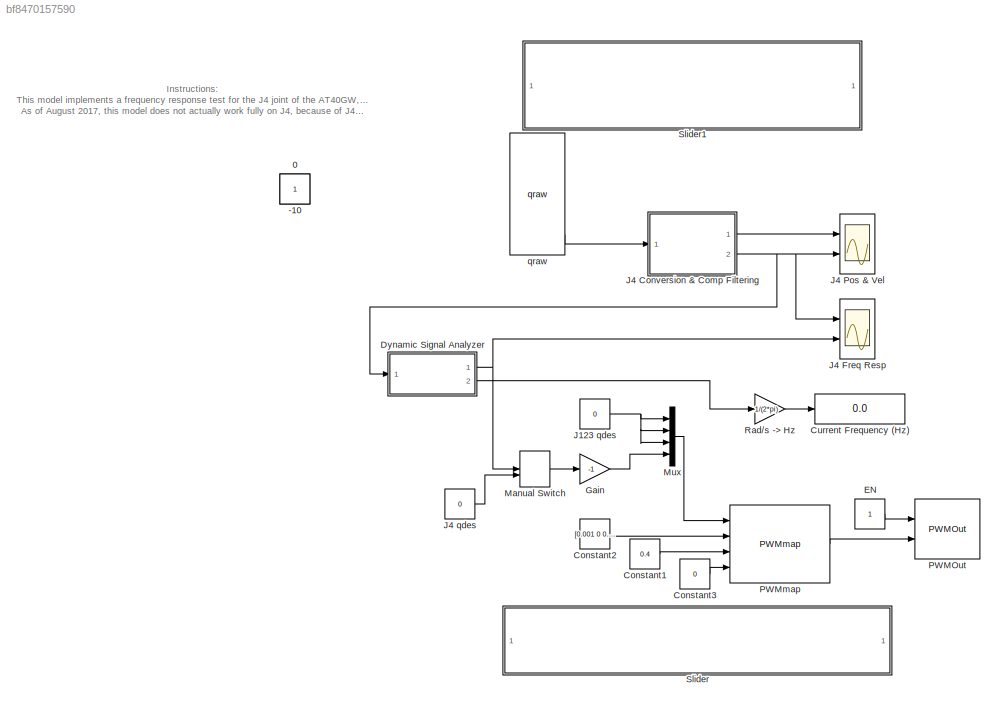
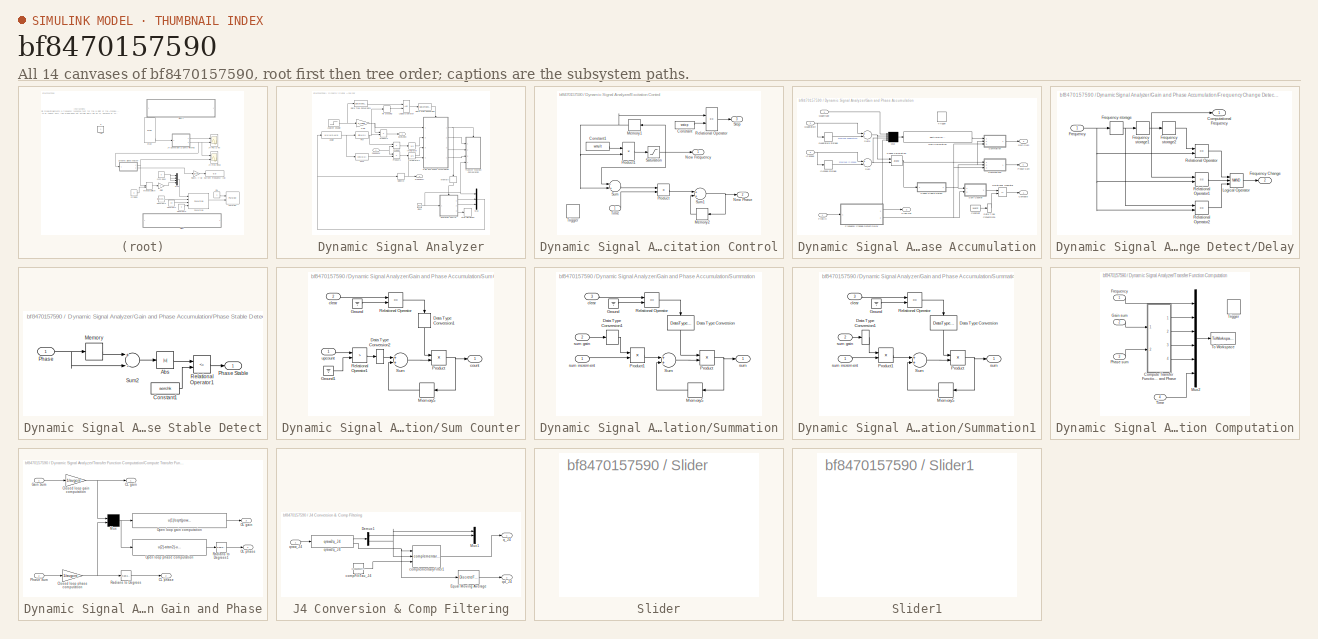
[diagram: thumbnail index - all 14 canvases of the model, root first then tree order]
MODEL slx_bf8470157590
KIND model
CONFIG AbsTol = auto
CONFIG EnableMultiTasking = on
CONFIG FixedStep = 0.001
CONFIG MaxStep = auto
CONFIG MinStep = auto
CONFIG RelTol = 1e-3
CONFIG SampleTimeConstraint = Unconstrained
CONFIG Solver = ode5
CONFIG SolverName = ode5
CONFIG StartTime = 0.0
CONFIG StopTime = inf
BLOCK [Constant] -10
  IOType = siggen
BLOCK [Constant] 0
  IOType = siggen
BLOCK [Constant] Constant1
  Value = 0.4
BLOCK [Constant] Constant2
  Value = [0.001 0 0.001 0.001]
BLOCK [Constant] Constant3
  Value = 0
BLOCK [Display] Current Frequency (Hz)
  Decimation = 1
  Ports = [1]
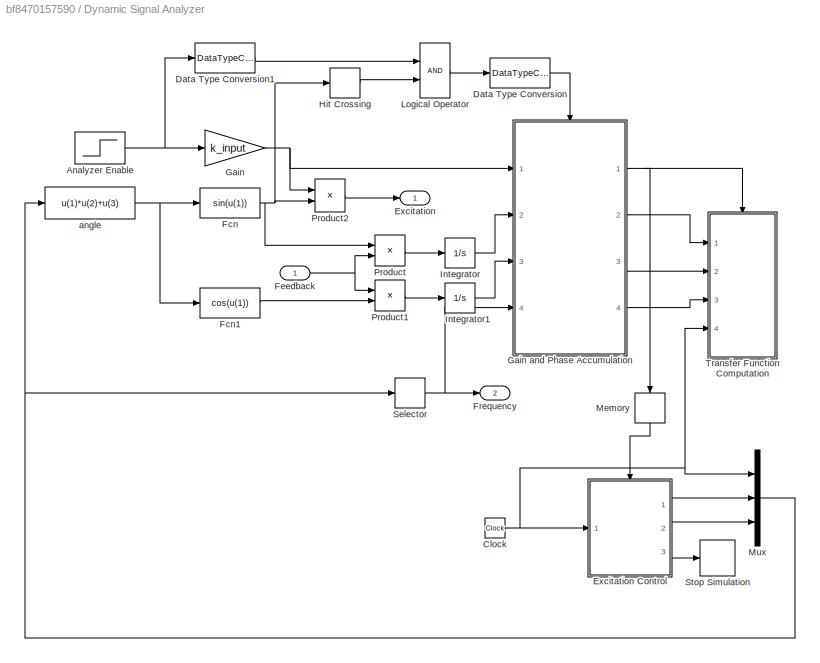
BLOCK [SubSystem] Dynamic Signal Analyzer
  Ports = [1, 2]
  RequestExecContextInheritance = off
  Variant = off
BLOCK [Step] Dynamic Signal Analyzer/Analyzer Enable
  After = analyzer_enable
  Time = tsettle
BLOCK [Clock] Dynamic Signal Analyzer/Clock
BLOCK [DataTypeConversion] Dynamic Signal Analyzer/Data Type Conversion
BLOCK [DataTypeConversion] Dynamic Signal Analyzer/Data Type Conversion1
BLOCK [Outport] Dynamic Signal Analyzer/Excitation
  IconDisplay = Port number
  InitialOutput = 0
BLOCK [SubSystem] Dynamic Signal Analyzer/Excitation Control
  Ports = [1, 3, 0, 1]
  RequestExecContextInheritance = off
  TreatAsAtomicUnit = on
  Variant = off
BLOCK [Constant] Dynamic Signal Analyzer/Excitation Control/Constant
  Value = wstop
BLOCK [Constant] Dynamic Signal Analyzer/Excitation Control/Constant1
  Value = wmult
BLOCK [Memory] Dynamic Signal Analyzer/Excitation Control/Memory1
  InheritSampleTime = on
  X0 = winit
BLOCK [Memory] Dynamic Signal Analyzer/Excitation Control/Memory2
  InheritSampleTime = on
BLOCK [Outport] Dynamic Signal Analyzer/Excitation Control/New Frequency
  IconDisplay = Port number
  InitialOutput = winit
BLOCK [Outport] Dynamic Signal Analyzer/Excitation Control/New Phase
  IconDisplay = Port number
  InitialOutput = 0
  Port = 2
BLOCK [Product] Dynamic Signal Analyzer/Excitation Control/Product
  Ports = [2, 1]
  RndMeth = Floor
BLOCK [Product] Dynamic Signal Analyzer/Excitation Control/Product1
  Ports = [2, 1]
  RndMeth = Floor
BLOCK [RelationalOperator] Dynamic Signal Analyzer/Excitation Control/Relational Operator
  Operator = <=
  Ports = [2, 1]
BLOCK [Saturate] Dynamic Signal Analyzer/Excitation Control/Saturation
  InputPortMap = u0
  LowerLimit = wstop
  Ports = [1, 1]
  UpperLimit = winit
BLOCK [Outport] Dynamic Signal Analyzer/Excitation Control/Stop
  IconDisplay = Port number
  InitialOutput = 0
  Port = 3
BLOCK [Sum] Dynamic Signal Analyzer/Excitation Control/Sum
  Inputs = -+
  Ports = [2, 1]
BLOCK [Sum] Dynamic Signal Analyzer/Excitation Control/Sum1
  Ports = [2, 1]
BLOCK [Inport] Dynamic Signal Analyzer/Excitation Control/Time
  IconDisplay = Port number
BLOCK [TriggerPort] Dynamic Signal Analyzer/Excitation Control/Trigger
  Ports = []
  VariantControl = Variant
BLOCK [Fcn] Dynamic Signal Analyzer/Fcn
  Expr = sin(u(1))
BLOCK [Fcn] Dynamic Signal Analyzer/Fcn1
  Expr = cos(u(1))
BLOCK [Inport] Dynamic Signal Analyzer/Feedback
  IconDisplay = Port number
BLOCK [Outport] Dynamic Signal Analyzer/Frequency
  IconDisplay = Port number
  InitialOutput = 0
  Port = 2
BLOCK [Gain] Dynamic Signal Analyzer/Gain
  Gain = k_input
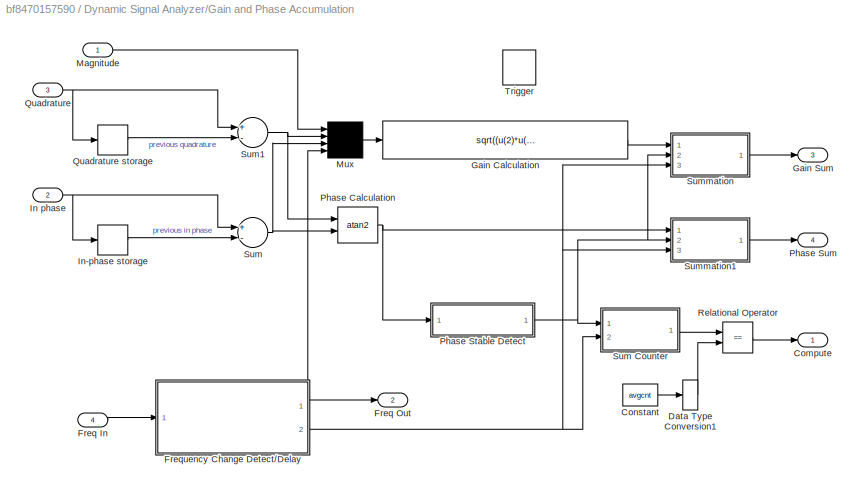
BLOCK [SubSystem] Dynamic Signal Analyzer/Gain and Phase Accumulation
  Ports = [4, 4, 0, 1]
  RequestExecContextInheritance = off
  TreatAsAtomicUnit = on
  Variant = off
BLOCK [Outport] Dynamic Signal Analyzer/Gain and Phase Accumulation/Compute
  IconDisplay = Port number
  InitialOutput = 0
BLOCK [Constant] Dynamic Signal Analyzer/Gain and Phase Accumulation/Constant
  Value = avgcnt
BLOCK [DataTypeConversion] Dynamic Signal Analyzer/Gain and Phase Accumulation/Data Type Conversion1
BLOCK [Inport] Dynamic Signal Analyzer/Gain and Phase Accumulation/Freq In
  IconDisplay = Port number
  Port = 4
BLOCK [Outport] Dynamic Signal Analyzer/Gain and Phase Accumulation/Freq Out
  IconDisplay = Port number
  InitialOutput = winit
  Port = 2
BLOCK [SubSystem] Dynamic Signal Analyzer/Gain and Phase Accumulation/Frequency Change Detect//Delay
  Ports = [1, 2]
  RequestExecContextInheritance = off
  Variant = off
BLOCK [Outport] Dynamic Signal Analyzer/Gain and Phase Accumulation/Frequency Change Detect//Delay/Computational Frequency
  IconDisplay = Port number
  InitialOutput = 0
BLOCK [Inport] Dynamic Signal Analyzer/Gain and Phase Accumulation/Frequency Change Detect//Delay/Frequency
  IconDisplay = Port number
BLOCK [Outport] Dynamic Signal Analyzer/Gain and Phase Accumulation/Frequency Change Detect//Delay/Frequency Change
  IconDisplay = Port number
  InitialOutput = 0
  Port = 2
BLOCK [Memory] Dynamic Signal Analyzer/Gain and Phase Accumulation/Frequency Change Detect//Delay/Frequency storage
  InheritSampleTime = on
  X0 = 1e-6
BLOCK [Memory] Dynamic Signal Analyzer/Gain and Phase Accumulation/Frequency Change Detect//Delay/Frequency storage1
  InheritSampleTime = on
  X0 = 1e-6
BLOCK [Memory] Dynamic Signal Analyzer/Gain and Phase Accumulation/Frequency Change Detect//Delay/Frequency storage2
  InheritSampleTime = on
  X0 = 1e-6
BLOCK [Logic] Dynamic Signal Analyzer/Gain and Phase Accumulation/Frequency Change Detect//Delay/Logical Operator
  Inputs = 3
  Operator = NAND
  Ports = [3, 1]
BLOCK [RelationalOperator] Dynamic Signal Analyzer/Gain and Phase Accumulation/Frequency Change Detect//Delay/Relational Operator
  Operator = ==
  Ports = [2, 1]
BLOCK [RelationalOperator] Dynamic Signal Analyzer/Gain and Phase Accumulation/Frequency Change Detect//Delay/Relational Operator1
  Operator = ==
  Ports = [2, 1]
BLOCK [RelationalOperator] Dynamic Signal Analyzer/Gain and Phase Accumulation/Frequency Change Detect//Delay/Relational Operator2
  Operator = ==
  Ports = [2, 1]
BLOCK [Fcn] Dynamic Signal Analyzer/Gain and Phase Accumulation/Gain Calculation
  Expr = sqrt((u(2)*u(2)+u(3)*u(3))*pow(u(4)/(pi*u(1)),2))
BLOCK [Outport] Dynamic Signal Analyzer/Gain and Phase Accumulation/Gain Sum
  IconDisplay = Port number
  InitialOutput = 0
  Port = 3
BLOCK [Inport] Dynamic Signal Analyzer/Gain and Phase Accumulation/In phase
  IconDisplay = Port number
  Port = 2
BLOCK [Memory] Dynamic Signal Analyzer/Gain and Phase Accumulation/In-phase storage
  InheritSampleTime = on
BLOCK [Inport] Dynamic Signal Analyzer/Gain and Phase Accumulation/Magnitude
  IconDisplay = Port number
BLOCK [Mux] Dynamic Signal Analyzer/Gain and Phase Accumulation/Mux
  Ports = [4, 1]
BLOCK [Trigonometry] Dynamic Signal Analyzer/Gain and Phase Accumulation/Phase Calculation
  Operator = atan2
  Ports = [2, 1]
BLOCK [SubSystem] Dynamic Signal Analyzer/Gain and Phase Accumulation/Phase Stable Detect
  Ports = [1, 1]
  RequestExecContextInheritance = off
  Variant = off
BLOCK [Abs] Dynamic Signal Analyzer/Gain and Phase Accumulation/Phase Stable Detect/Abs
BLOCK [Constant] Dynamic Signal Analyzer/Gain and Phase Accumulation/Phase Stable Detect/Constant1
  Value = aerrchk
BLOCK [Memory] Dynamic Signal Analyzer/Gain and Phase Accumulation/Phase Stable Detect/Memory
  InheritSampleTime = on
  X0 = 1e20
BLOCK [Inport] Dynamic Signal Analyzer/Gain and Phase Accumulation/Phase Stable Detect/Phase
  IconDisplay = Port number
BLOCK [Outport] Dynamic Signal Analyzer/Gain and Phase Accumulation/Phase Stable Detect/Phase Stable
  IconDisplay = Port number
  InitialOutput = 0
BLOCK [RelationalOperator] Dynamic Signal Analyzer/Gain and Phase Accumulation/Phase Stable Detect/Relational Operator1
  Operator = <=
  Ports = [2, 1]
BLOCK [Sum] Dynamic Signal Analyzer/Gain and Phase Accumulation/Phase Stable Detect/Sum2
  Inputs = +-
  Ports = [2, 1]
BLOCK [Outport] Dynamic Signal Analyzer/Gain and Phase Accumulation/Phase Sum
  IconDisplay = Port number
  InitialOutput = 0
  Port = 4
BLOCK [Inport] Dynamic Signal Analyzer/Gain and Phase Accumulation/Quadrature
  IconDisplay = Port number
  Port = 3
BLOCK [Memory] Dynamic Signal Analyzer/Gain and Phase Accumulation/Quadrature storage
  InheritSampleTime = on
BLOCK [RelationalOperator] Dynamic Signal Analyzer/Gain and Phase Accumulation/Relational Operator
  Operator = ==
  Ports = [2, 1]
BLOCK [Sum] Dynamic Signal Analyzer/Gain and Phase Accumulation/Sum
  Inputs = +-
  Ports = [2, 1]
BLOCK [SubSystem] Dynamic Signal Analyzer/Gain and Phase Accumulation/Sum Counter
  Ports = [2, 1]
  RequestExecContextInheritance = off
  Variant = off
BLOCK [DataTypeConversion] Dynamic Signal Analyzer/Gain and Phase Accumulation/Sum Counter/Data Type Conversion1
BLOCK [DataTypeConversion] Dynamic Signal Analyzer/Gain and Phase Accumulation/Sum Counter/Data Type Conversion2
BLOCK [Ground] Dynamic Signal Analyzer/Gain and Phase Accumulation/Sum Counter/Ground
BLOCK [Ground] Dynamic Signal Analyzer/Gain and Phase Accumulation/Sum Counter/Ground1
BLOCK [Memory] Dynamic Signal Analyzer/Gain and Phase Accumulation/Sum Counter/Memory5
  InheritSampleTime = on
BLOCK [Product] Dynamic Signal Analyzer/Gain and Phase Accumulation/Sum Counter/Product
  Ports = [2, 1]
  RndMeth = Floor
BLOCK [RelationalOperator] Dynamic Signal Analyzer/Gain and Phase Accumulation/Sum Counter/Relational Operator
  Operator = <=
  Ports = [2, 1]
BLOCK [RelationalOperator] Dynamic Signal Analyzer/Gain and Phase Accumulation/Sum Counter/Relational Operator1
  Operator = >
  Ports = [2, 1]
BLOCK [Sum] Dynamic Signal Analyzer/Gain and Phase Accumulation/Sum Counter/Sum
  Ports = [2, 1]
BLOCK [Inport] Dynamic Signal Analyzer/Gain and Phase Accumulation/Sum Counter/clear
  IconDisplay = Port number
  Port = 2
BLOCK [Outport] Dynamic Signal Analyzer/Gain and Phase Accumulation/Sum Counter/count
  IconDisplay = Port number
BLOCK [Inport] Dynamic Signal Analyzer/Gain and Phase Accumulation/Sum Counter/upcount
  IconDisplay = Port number
BLOCK [Sum] Dynamic Signal Analyzer/Gain and Phase Accumulation/Sum1
  Inputs = +-
  Ports = [2, 1]
BLOCK [SubSystem] Dynamic Signal Analyzer/Gain and Phase Accumulation/Summation
  Ports = [3, 1]
  RequestExecContextInheritance = off
  Variant = off
BLOCK [DataTypeConversion] Dynamic Signal Analyzer/Gain and Phase Accumulation/Summation/Data Type Conversion
BLOCK [DataTypeConversion] Dynamic Signal Analyzer/Gain and Phase Accumulation/Summation/Data Type Conversion1
BLOCK [Ground] Dynamic Signal Analyzer/Gain and Phase Accumulation/Summation/Ground
BLOCK [Memory] Dynamic Signal Analyzer/Gain and Phase Accumulation/Summation/Memory5
  InheritSampleTime = on
BLOCK [Product] Dynamic Signal Analyzer/Gain and Phase Accumulation/Summation/Product
  Ports = [2, 1]
  RndMeth = Floor
BLOCK [Product] Dynamic Signal Analyzer/Gain and Phase Accumulation/Summation/Product1
  Ports = [2, 1]
  RndMeth = Floor
BLOCK [RelationalOperator] Dynamic Signal Analyzer/Gain and Phase Accumulation/Summation/Relational Operator
  Operator = <=
  Ports = [2, 1]
BLOCK [Sum] Dynamic Signal Analyzer/Gain and Phase Accumulation/Summation/Sum
  Ports = [2, 1]
BLOCK [Inport] Dynamic Signal Analyzer/Gain and Phase Accumulation/Summation/clear
  IconDisplay = Port number
  Port = 3
BLOCK [Outport] Dynamic Signal Analyzer/Gain and Phase Accumulation/Summation/sum
  IconDisplay = Port number
BLOCK [Inport] Dynamic Signal Analyzer/Gain and Phase Accumulation/Summation/sum gain
  IconDisplay = Port number
  Port = 2
BLOCK [Inport] Dynamic Signal Analyzer/Gain and Phase Accumulation/Summation/sum increment
  IconDisplay = Port number
BLOCK [SubSystem] Dynamic Signal Analyzer/Gain and Phase Accumulation/Summation1
  Ports = [3, 1]
  RequestExecContextInheritance = off
  Variant = off
BLOCK [DataTypeConversion] Dynamic Signal Analyzer/Gain and Phase Accumulation/Summation1/Data Type Conversion
BLOCK [DataTypeConversion] Dynamic Signal Analyzer/Gain and Phase Accumulation/Summation1/Data Type Conversion1
BLOCK [Ground] Dynamic Signal Analyzer/Gain and Phase Accumulation/Summation1/Ground
BLOCK [Memory] Dynamic Signal Analyzer/Gain and Phase Accumulation/Summation1/Memory5
  InheritSampleTime = on
BLOCK [Product] Dynamic Signal Analyzer/Gain and Phase Accumulation/Summation1/Product
  Ports = [2, 1]
  RndMeth = Floor
BLOCK [Product] Dynamic Signal Analyzer/Gain and Phase Accumulation/Summation1/Product1
  Ports = [2, 1]
  RndMeth = Floor
BLOCK [RelationalOperator] Dynamic Signal Analyzer/Gain and Phase Accumulation/Summation1/Relational Operator
  Operator = <=
  Ports = [2, 1]
BLOCK [Sum] Dynamic Signal Analyzer/Gain and Phase Accumulation/Summation1/Sum
  Ports = [2, 1]
BLOCK [Inport] Dynamic Signal Analyzer/Gain and Phase Accumulation/Summation1/clear
  IconDisplay = Port number
  Port = 3
BLOCK [Outport] Dynamic Signal Analyzer/Gain and Phase Accumulation/Summation1/sum
  IconDisplay = Port number
BLOCK [Inport] Dynamic Signal Analyzer/Gain and Phase Accumulation/Summation1/sum gain
  IconDisplay = Port number
  Port = 2
BLOCK [Inport] Dynamic Signal Analyzer/Gain and Phase Accumulation/Summation1/sum increment
  IconDisplay = Port number
BLOCK [TriggerPort] Dynamic Signal Analyzer/Gain and Phase Accumulation/Trigger
  Ports = []
  VariantControl = Variant
BLOCK [HitCross] Dynamic Signal Analyzer/Hit Crossing
  HitCrossingDirection = rising
  Ports = [1, 1]
BLOCK [Integrator] Dynamic Signal Analyzer/Integrator
  Ports = [1, 1]
BLOCK [Integrator] Dynamic Signal Analyzer/Integrator1
  Ports = [1, 1]
BLOCK [Logic] Dynamic Signal Analyzer/Logical Operator
  Ports = [2, 1]
BLOCK [Memory] Dynamic Signal Analyzer/Memory
  InheritSampleTime = on
BLOCK [Mux] Dynamic Signal Analyzer/Mux
  Inputs = 3
  Ports = [3, 1]
BLOCK [Product] Dynamic Signal Analyzer/Product
  Ports = [2, 1]
  RndMeth = Floor
BLOCK [Product] Dynamic Signal Analyzer/Product1
  Ports = [2, 1]
  RndMeth = Floor
BLOCK [Product] Dynamic Signal Analyzer/Product2
  Ports = [2, 1]
  RndMeth = Floor
BLOCK [Selector] Dynamic Signal Analyzer/Selector
  IndexOptions = Index vector (dialog)
  Indices = [2]
  InputPortWidth = 3
  OutputSizes = 1
  Ports = [1, 1]
BLOCK [Stop] Dynamic Signal Analyzer/Stop Simulation
BLOCK [SubSystem] Dynamic Signal Analyzer/Transfer Function Computation
  Ports = [4, 0, 0, 1]
  RequestExecContextInheritance = off
  TreatAsAtomicUnit = on
  Variant = off
BLOCK [SubSystem] Dynamic Signal Analyzer/Transfer Function Computation/Compute Transfer Function Gain and Phase
  Ports = [2, 4]
  RequestExecContextInheritance = off
  Variant = off
BLOCK [Outport] Dynamic Signal Analyzer/Transfer Function Computation/Compute Transfer Function Gain and Phase/CL gain
  IconDisplay = Port number
  InitialOutput = 0
BLOCK [Outport] Dynamic Signal Analyzer/Transfer Function Computation/Compute Transfer Function Gain and Phase/CL phase
  IconDisplay = Port number
  InitialOutput = 0
  Port = 2
BLOCK [Gain] Dynamic Signal Analyzer/Transfer Function Computation/Compute Transfer Function Gain and Phase/Closed loop gain computation
  Gain = 1/avgcnt
BLOCK [Gain] Dynamic Signal Analyzer/Transfer Function Computation/Compute Transfer Function Gain and Phase/Closed loop phase computation
  Gain = 1/avgcnt
BLOCK [Inport] Dynamic Signal Analyzer/Transfer Function Computation/Compute Transfer Function Gain and Phase/Gain Sum
  IconDisplay = Port number
BLOCK [Mux] Dynamic Signal Analyzer/Transfer Function Computation/Compute Transfer Function Gain and Phase/Mux
  Inputs = 2
  Ports = [2, 1]
BLOCK [Outport] Dynamic Signal Analyzer/Transfer Function Computation/Compute Transfer Function Gain and Phase/OL gain
  IconDisplay = Port number
  InitialOutput = 0
  Port = 3
BLOCK [Outport] Dynamic Signal Analyzer/Transfer Function Computation/Compute Transfer Function Gain and Phase/OL phase
  IconDisplay = Port number
  InitialOutput = 0
  Port = 4
BLOCK [Fcn] Dynamic Signal Analyzer/Transfer Function Computation/Compute Transfer Function Gain and Phase/Open loop gain computation
  Expr = u(1)/sqrt(pow(1-u(1)*cos(u(2)),2)+pow(u(1)*sin(u(2)),2))
BLOCK [Fcn] Dynamic Signal Analyzer/Transfer Function Computation/Compute Transfer Function Gain and Phase/Open loop phase computation
  Expr = u(2)-atan2(-u(1)*sin(u(2)),1-u(1)*cos(u(2)))
BLOCK [Inport] Dynamic Signal Analyzer/Transfer Function Computation/Compute Transfer Function Gain and Phase/Phase Sum
  IconDisplay = Port number
  Port = 2
BLOCK [Reference] Dynamic Signal Analyzer/Transfer Function Computation/Compute Transfer Function Gain and Phase/Radians to Degrees  REF=simulink_extras/Transformations/Radians
to Degrees
  Ports = [1, 1]
  SourceBlock = simulink_extras/Transformations/Radians\nto Degrees
  SourceType = RadiansToDegrees
BLOCK [Reference] Dynamic Signal Analyzer/Transfer Function Computation/Compute Transfer Function Gain and Phase/Radians to Degrees1  REF=simulink_extras/Transformations/Radians
to Degrees
  Ports = [1, 1]
  SourceBlock = simulink_extras/Transformations/Radians\nto Degrees
  SourceType = RadiansToDegrees
BLOCK [Inport] Dynamic Signal Analyzer/Transfer Function Computation/Frequency
  IconDisplay = Port number
BLOCK [Inport] Dynamic Signal Analyzer/Transfer Function Computation/Gain sum
  IconDisplay = Port number
  Port = 2
BLOCK [Mux] Dynamic Signal Analyzer/Transfer Function Computation/Mux2
  Inputs = 6
  Ports = [6, 1]
BLOCK [Inport] Dynamic Signal Analyzer/Transfer Function Computation/Phase sum
  IconDisplay = Port number
  Port = 3
BLOCK [Inport] Dynamic Signal Analyzer/Transfer Function Computation/Time
  IconDisplay = Port number
  Port = 4
BLOCK [ToWorkspace] Dynamic Signal Analyzer/Transfer Function Computation/To Workspace
  Ports = [1]
  SampleTime = -1
  VariableName = freq_resp
BLOCK [TriggerPort] Dynamic Signal Analyzer/Transfer Function Computation/Trigger
  Ports = []
  VariantControl = Variant
BLOCK [Fcn] Dynamic Signal Analyzer/angle
  Expr = u(1)*u(2)+u(3)
BLOCK [Constant] EN
BLOCK [Gain] Gain
  Gain = -1
  OutDataTypeStr = Inherit: Inherit via internal rule
  ParamDataTypeStr = Inherit: Inherit via internal rule
  SaturateOnIntegerOverflow = off
BLOCK [Constant] J123 qdes
  Value = 0
BLOCK [SubSystem] J4 Conversion & Comp Filtering
  Ports = [1, 2]
  RequestExecContextInheritance = off
  Variant = off
BLOCK [Demux] J4 Conversion & Comp Filtering/Demux1
  DisplayOption = bar
  Outputs = 2
  Ports = [1, 2]
BLOCK [DiscreteFir] J4 Conversion & Comp Filtering/Equal Moving Average
  Coefficients = [0.1 0.1 0.1 0.1 0.1 0.1 0.1 0.1 0.1 0.1]
  InputPortMap = u0
  InputProcessing = Columns as channels (frame based)
  OutputPortMap = o0
  Ports = [1, 1]
BLOCK [Mux] J4 Conversion & Comp Filtering/Mux1
  DisplayOption = bar
  Inputs = 3
  Ports = [3, 1]
BLOCK [Constant] J4 Conversion & Comp Filtering/compFiltTau_J4
  Value = 0.036690647482
BLOCK [Reference] J4 Conversion & Comp Filtering/complementaryFilter1  REF=dcpctrl/complementaryFilter
  Ports = [3, 1]
  SourceBlock = dcpctrl/complementaryFilter
  SourceType = SubSystem
BLOCK [Outport] J4 Conversion & Comp Filtering/q_J4
  IconDisplay = Port number
BLOCK [Outport] J4 Conversion & Comp Filtering/qd_J4
  IconDisplay = Port number
  Port = 2
BLOCK [Reference] J4 Conversion & Comp Filtering/qraw2q_J4  REF=dcpctrl/qraw2q_J4
  Ports = [1, 2]
  SourceBlock = dcpctrl/qraw2q_J4
  SourceType = SubSystem
BLOCK [Inport] J4 Conversion & Comp Filtering/qraw_J4
  IconDisplay = Port number
BLOCK [Scope] J4 Freq Resp
  NumInputPorts = 2
  Ports = [2]
  ScopeSpecificationString = Simulink.scopes.TimeScopeBlockCfg('CurrentConfiguration', extmgr.ConfigurationSet(extmgr.Configuration('Core','General UI',true,'FigureColor',[1 1 1]),extmgr.Configuration('Core','Source UI',true),extmgr.Configuration('Sources','WiredSimulink',true,'DataLoggingVariableName','ScopeData1'),extmgr.Configuration('Visuals','Time Domain',true,'SerializedDisplays',{struct('MinYLimReal','-158.50869','MaxY...<+2594ch>
BLOCK [Scope] J4 Pos & Vel
  NumInputPorts = 2
  Ports = [2]
  ScopeSpecificationString = Simulink.scopes.TimeScopeBlockCfg('CurrentConfiguration', extmgr.ConfigurationSet(extmgr.Configuration('Core','General UI',true,'FigureColor',[1 1 1]),extmgr.Configuration('Core','Source UI',true),extmgr.Configuration('Sources','WiredSimulink',true,'DataLoggingVariableName','ScopeData1'),extmgr.Configuration('Visuals','Time Domain',true,'SerializedDisplays',{struct('MinYLimReal','246.70736','MaxYL...<+2475ch>
BLOCK [Constant] J4 qdes
  Value = 0
BLOCK [ManualSwitch] Manual Switch
BLOCK [Mux] Mux
  DisplayOption = bar
  Ports = [4, 1]
BLOCK [Reference] PWMOut  REF=dcpctrl/PWMOut
  Ports = [2]
  SourceBlock = dcpctrl/PWMOut
  SourceType = SubSystem
BLOCK [Reference] PWMmap  REF=dcpctrl/PWMmap
  Ports = [4, 1]
  SourceBlock = dcpctrl/PWMmap
  SourceType = PWMmap
BLOCK [Gain] Rad//s -> Hz
  Gain = 1/(2*pi)
  OutDataTypeStr = Inherit: Inherit via internal rule
  ParamDataTypeStr = Inherit: Inherit via internal rule
  SaturateOnIntegerOverflow = off
BLOCK [SubSystem] Slider
  DialogController = hmiCreateDDGDialog
  IsWebBlock = on
  MaskHideContents = on
  Ports = []
  RequestExecContextInheritance = off
  Variant = off
BLOCK [SubSystem] Slider1
  DialogController = hmiCreateDDGDialog
  IsWebBlock = on
  MaskHideContents = on
  Ports = []
  RequestExecContextInheritance = off
  Variant = off
BLOCK [Reference] qraw  REF=dcpctrl/qraw
  Ports = [0, 5]
  SourceBlock = dcpctrl/qraw
  SourceType = SubSystem
ANNOTATION (root): Instructions: This model implements a frequency response test for the J4 joint of the AT40GW, using the Dynamic Signal Analyzer block by Jim Royalty. It requires the rtdsaDataParse script to extract a Bode plot from the measured system frequency response. This model is designed for the J4 joint, but could trivially be adapted to other joints. As of August 2017, this model does not actually work fu...<+202ch>
LINE Constant1:1 -> PWMmap:3
LINE Constant2:1 -> PWMmap:2
LINE Constant3:1 -> PWMmap:4
NET Dynamic Signal Analyzer/Analyzer Enable:1 -> Dynamic Signal Analyzer/Data Type Conversion1:1, Dynamic Signal Analyzer/Gain:1
NET Dynamic Signal Analyzer/Clock:1 -> Dynamic Signal Analyzer/Excitation Control:1, Dynamic Signal Analyzer/Mux:1, Dynamic Signal Analyzer/Transfer Function Computation:4
LINE Dynamic Signal Analyzer/Data Type Conversion1:1 -> Dynamic Signal Analyzer/Logical Operator:1
LINE Dynamic Signal Analyzer/Data Type Conversion:1 -> Dynamic Signal Analyzer/Gain and Phase Accumulation:trigger
LINE Dynamic Signal Analyzer/Excitation Control/Constant1:1 -> Dynamic Signal Analyzer/Excitation Control/Product1:1
LINE Dynamic Signal Analyzer/Excitation Control/Constant:1 -> Dynamic Signal Analyzer/Excitation Control/Relational Operator:2
NET Dynamic Signal Analyzer/Excitation Control/Memory1:1 -> Dynamic Signal Analyzer/Excitation Control/Product1:2, Dynamic Signal Analyzer/Excitation Control/Relational Operator:1, Dynamic Signal Analyzer/Excitation Control/Sum:2
LINE Dynamic Signal Analyzer/Excitation Control/Memory2:1 -> Dynamic Signal Analyzer/Excitation Control/Sum1:2
LINE Dynamic Signal Analyzer/Excitation Control/Product1:1 -> Dynamic Signal Analyzer/Excitation Control/Saturation:1
LINE Dynamic Signal Analyzer/Excitation Control/Product:1 -> Dynamic Signal Analyzer/Excitation Control/Sum1:1
LINE Dynamic Signal Analyzer/Excitation Control/Relational Operator:1 -> Dynamic Signal Analyzer/Excitation Control/Stop:1
NET Dynamic Signal Analyzer/Excitation Control/Saturation:1 -> Dynamic Signal Analyzer/Excitation Control/Memory1:1, Dynamic Signal Analyzer/Excitation Control/New Frequency:1, Dynamic Signal Analyzer/Excitation Control/Sum:1
NET Dynamic Signal Analyzer/Excitation Control/Sum1:1 -> Dynamic Signal Analyzer/Excitation Control/Memory2:1, Dynamic Signal Analyzer/Excitation Control/New Phase:1
LINE Dynamic Signal Analyzer/Excitation Control/Sum:1 -> Dynamic Signal Analyzer/Excitation Control/Product:1
LINE Dynamic Signal Analyzer/Excitation Control/Time:1 -> Dynamic Signal Analyzer/Excitation Control/Product:2
LINE Dynamic Signal Analyzer/Excitation Control:1 -> Dynamic Signal Analyzer/Mux:2
LINE Dynamic Signal Analyzer/Excitation Control:2 -> Dynamic Signal Analyzer/Mux:3
LINE Dynamic Signal Analyzer/Excitation Control:3 -> Dynamic Signal Analyzer/Stop Simulation:1
LINE Dynamic Signal Analyzer/Fcn1:1 -> Dynamic Signal Analyzer/Product1:2
NET Dynamic Signal Analyzer/Fcn:1 -> Dynamic Signal Analyzer/Hit Crossing:1, Dynamic Signal Analyzer/Product2:2, Dynamic Signal Analyzer/Product:1
NET Dynamic Signal Analyzer/Feedback:1 -> Dynamic Signal Analyzer/Product1:1, Dynamic Signal Analyzer/Product:2
LINE Dynamic Signal Analyzer/Gain and Phase Accumulation/Constant:1 -> Dynamic Signal Analyzer/Gain and Phase Accumulation/Data Type Conversion1:1
LINE Dynamic Signal Analyzer/Gain and Phase Accumulation/Data Type Conversion1:1 -> Dynamic Signal Analyzer/Gain and Phase Accumulation/Relational Operator:2
LINE Dynamic Signal Analyzer/Gain and Phase Accumulation/Freq In:1 -> Dynamic Signal Analyzer/Gain and Phase Accumulation/Frequency Change Detect//Delay:1
NET Dynamic Signal Analyzer/Gain and Phase Accumulation/Frequency Change Detect//Delay/Frequency storage1:1 -> Dynamic Signal Analyzer/Gain and Phase Accumulation/Frequency Change Detect//Delay/Computational Frequency:1, Dynamic Signal Analyzer/Gain and Phase Accumulation/Frequency Change Detect//Delay/Frequency storage2:1, Dynamic Signal Analyzer/Gain and Phase Accumulation/Frequency Change Detect//Delay/Relational Operator1:1
LINE Dynamic Signal Analyzer/Gain and Phase Accumulation/Frequency Change Detect//Delay/Frequency storage2:1 -> Dynamic Signal Analyzer/Gain and Phase Accumulation/Frequency Change Detect//Delay/Relational Operator:1
NET Dynamic Signal Analyzer/Gain and Phase Accumulation/Frequency Change Detect//Delay/Frequency storage:1 -> Dynamic Signal Analyzer/Gain and Phase Accumulation/Frequency Change Detect//Delay/Frequency storage1:1, Dynamic Signal Analyzer/Gain and Phase Accumulation/Frequency Change Detect//Delay/Relational Operator2:1
NET Dynamic Signal Analyzer/Gain and Phase Accumulation/Frequency Change Detect//Delay/Frequency:1 -> Dynamic Signal Analyzer/Gain and Phase Accumulation/Frequency Change Detect//Delay/Frequency storage:1, Dynamic Signal Analyzer/Gain and Phase Accumulation/Frequency Change Detect//Delay/Relational Operator1:2, Dynamic Signal Analyzer/Gain and Phase Accumulation/Frequency Change Detect//Delay/Relational Operator2:2, Dynamic Signal Analyzer/Gain and Phase Accumulation/Frequency Change Detect//Delay/Relational Operator:2
LINE Dynamic Signal Analyzer/Gain and Phase Accumulation/Frequency Change Detect//Delay/Logical Operator:1 -> Dynamic Signal Analyzer/Gain and Phase Accumulation/Frequency Change Detect//Delay/Frequency Change:1
LINE Dynamic Signal Analyzer/Gain and Phase Accumulation/Frequency Change Detect//Delay/Relational Operator1:1 -> Dynamic Signal Analyzer/Gain and Phase Accumulation/Frequency Change Detect//Delay/Logical Operator:2
LINE Dynamic Signal Analyzer/Gain and Phase Accumulation/Frequency Change Detect//Delay/Relational Operator2:1 -> Dynamic Signal Analyzer/Gain and Phase Accumulation/Frequency Change Detect//Delay/Logical Operator:3
LINE Dynamic Signal Analyzer/Gain and Phase Accumulation/Frequency Change Detect//Delay/Relational Operator:1 -> Dynamic Signal Analyzer/Gain and Phase Accumulation/Frequency Change Detect//Delay/Logical Operator:1
NET Dynamic Signal Analyzer/Gain and Phase Accumulation/Frequency Change Detect//Delay:1 -> Dynamic Signal Analyzer/Gain and Phase Accumulation/Freq Out:1, Dynamic Signal Analyzer/Gain and Phase Accumulation/Mux:4
NET Dynamic Signal Analyzer/Gain and Phase Accumulation/Frequency Change Detect//Delay:2 -> Dynamic Signal Analyzer/Gain and Phase Accumulation/Sum Counter:2, Dynamic Signal Analyzer/Gain and Phase Accumulation/Summation1:3, Dynamic Signal Analyzer/Gain and Phase Accumulation/Summation:3
LINE Dynamic Signal Analyzer/Gain and Phase Accumulation/Gain Calculation:1 -> Dynamic Signal Analyzer/Gain and Phase Accumulation/Summation:1
NET Dynamic Signal Analyzer/Gain and Phase Accumulation/In phase:1 -> Dynamic Signal Analyzer/Gain and Phase Accumulation/In-phase storage:1, Dynamic Signal Analyzer/Gain and Phase Accumulation/Sum:1
LINE Dynamic Signal Analyzer/Gain and Phase Accumulation/In-phase storage:1 -> Dynamic Signal Analyzer/Gain and Phase Accumulation/Sum:2
LINE Dynamic Signal Analyzer/Gain and Phase Accumulation/Magnitude:1 -> Dynamic Signal Analyzer/Gain and Phase Accumulation/Mux:1
LINE Dynamic Signal Analyzer/Gain and Phase Accumulation/Mux:1 -> Dynamic Signal Analyzer/Gain and Phase Accumulation/Gain Calculation:1
NET Dynamic Signal Analyzer/Gain and Phase Accumulation/Phase Calculation:1 -> Dynamic Signal Analyzer/Gain and Phase Accumulation/Phase Stable Detect:1, Dynamic Signal Analyzer/Gain and Phase Accumulation/Summation1:1
LINE Dynamic Signal Analyzer/Gain and Phase Accumulation/Phase Stable Detect/Abs:1 -> Dynamic Signal Analyzer/Gain and Phase Accumulation/Phase Stable Detect/Relational Operator1:1
LINE Dynamic Signal Analyzer/Gain and Phase Accumulation/Phase Stable Detect/Constant1:1 -> Dynamic Signal Analyzer/Gain and Phase Accumulation/Phase Stable Detect/Relational Operator1:2
LINE Dynamic Signal Analyzer/Gain and Phase Accumulation/Phase Stable Detect/Memory:1 -> Dynamic Signal Analyzer/Gain and Phase Accumulation/Phase Stable Detect/Sum2:1
NET Dynamic Signal Analyzer/Gain and Phase Accumulation/Phase Stable Detect/Phase:1 -> Dynamic Signal Analyzer/Gain and Phase Accumulation/Phase Stable Detect/Memory:1, Dynamic Signal Analyzer/Gain and Phase Accumulation/Phase Stable Detect/Sum2:2
LINE Dynamic Signal Analyzer/Gain and Phase Accumulation/Phase Stable Detect/Relational Operator1:1 -> Dynamic Signal Analyzer/Gain and Phase Accumulation/Phase Stable Detect/Phase Stable:1
LINE Dynamic Signal Analyzer/Gain and Phase Accumulation/Phase Stable Detect/Sum2:1 -> Dynamic Signal Analyzer/Gain and Phase Accumulation/Phase Stable Detect/Abs:1
NET Dynamic Signal Analyzer/Gain and Phase Accumulation/Phase Stable Detect:1 -> Dynamic Signal Analyzer/Gain and Phase Accumulation/Sum Counter:1, Dynamic Signal Analyzer/Gain and Phase Accumulation/Summation1:2, Dynamic Signal Analyzer/Gain and Phase Accumulation/Summation:2
LINE Dynamic Signal Analyzer/Gain and Phase Accumulation/Quadrature storage:1 -> Dynamic Signal Analyzer/Gain and Phase Accumulation/Sum1:2
NET Dynamic Signal Analyzer/Gain and Phase Accumulation/Quadrature:1 -> Dynamic Signal Analyzer/Gain and Phase Accumulation/Quadrature storage:1, Dynamic Signal Analyzer/Gain and Phase Accumulation/Sum1:1
LINE Dynamic Signal Analyzer/Gain and Phase Accumulation/Relational Operator:1 -> Dynamic Signal Analyzer/Gain and Phase Accumulation/Compute:1
LINE Dynamic Signal Analyzer/Gain and Phase Accumulation/Sum Counter/Data Type Conversion1:1 -> Dynamic Signal Analyzer/Gain and Phase Accumulation/Sum Counter/Product:1
LINE Dynamic Signal Analyzer/Gain and Phase Accumulation/Sum Counter/Data Type Conversion2:1 -> Dynamic Signal Analyzer/Gain and Phase Accumulation/Sum Counter/Sum:1
LINE Dynamic Signal Analyzer/Gain and Phase Accumulation/Sum Counter/Ground1:1 -> Dynamic Signal Analyzer/Gain and Phase Accumulation/Sum Counter/Relational Operator1:2
LINE Dynamic Signal Analyzer/Gain and Phase Accumulation/Sum Counter/Ground:1 -> Dynamic Signal Analyzer/Gain and Phase Accumulation/Sum Counter/Relational Operator:2
LINE Dynamic Signal Analyzer/Gain and Phase Accumulation/Sum Counter/Memory5:1 -> Dynamic Signal Analyzer/Gain and Phase Accumulation/Sum Counter/Sum:2
NET Dynamic Signal Analyzer/Gain and Phase Accumulation/Sum Counter/Product:1 -> Dynamic Signal Analyzer/Gain and Phase Accumulation/Sum Counter/Memory5:1, Dynamic Signal Analyzer/Gain and Phase Accumulation/Sum Counter/count:1
LINE Dynamic Signal Analyzer/Gain and Phase Accumulation/Sum Counter/Relational Operator1:1 -> Dynamic Signal Analyzer/Gain and Phase Accumulation/Sum Counter/Data Type Conversion2:1
LINE Dynamic Signal Analyzer/Gain and Phase Accumulation/Sum Counter/Relational Operator:1 -> Dynamic Signal Analyzer/Gain and Phase Accumulation/Sum Counter/Data Type Conversion1:1
LINE Dynamic Signal Analyzer/Gain and Phase Accumulation/Sum Counter/Sum:1 -> Dynamic Signal Analyzer/Gain and Phase Accumulation/Sum Counter/Product:2
LINE Dynamic Signal Analyzer/Gain and Phase Accumulation/Sum Counter/clear:1 -> Dynamic Signal Analyzer/Gain and Phase Accumulation/Sum Counter/Relational Operator:1
LINE Dynamic Signal Analyzer/Gain and Phase Accumulation/Sum Counter/upcount:1 -> Dynamic Signal Analyzer/Gain and Phase Accumulation/Sum Counter/Relational Operator1:1
LINE Dynamic Signal Analyzer/Gain and Phase Accumulation/Sum Counter:1 -> Dynamic Signal Analyzer/Gain and Phase Accumulation/Relational Operator:1
NET Dynamic Signal Analyzer/Gain and Phase Accumulation/Sum1:1 -> Dynamic Signal Analyzer/Gain and Phase Accumulation/Mux:2, Dynamic Signal Analyzer/Gain and Phase Accumulation/Phase Calculation:1
NET Dynamic Signal Analyzer/Gain and Phase Accumulation/Sum:1 -> Dynamic Signal Analyzer/Gain and Phase Accumulation/Mux:3, Dynamic Signal Analyzer/Gain and Phase Accumulation/Phase Calculation:2
LINE Dynamic Signal Analyzer/Gain and Phase Accumulation/Summation/Data Type Conversion1:1 -> Dynamic Signal Analyzer/Gain and Phase Accumulation/Summation/Product1:1
LINE Dynamic Signal Analyzer/Gain and Phase Accumulation/Summation/Data Type Conversion:1 -> Dynamic Signal Analyzer/Gain and Phase Accumulation/Summation/Product:1
LINE Dynamic Signal Analyzer/Gain and Phase Accumulation/Summation/Ground:1 -> Dynamic Signal Analyzer/Gain and Phase Accumulation/Summation/Relational Operator:2
LINE Dynamic Signal Analyzer/Gain and Phase Accumulation/Summation/Memory5:1 -> Dynamic Signal Analyzer/Gain and Phase Accumulation/Summation/Sum:2
LINE Dynamic Signal Analyzer/Gain and Phase Accumulation/Summation/Product1:1 -> Dynamic Signal Analyzer/Gain and Phase Accumulation/Summation/Sum:1
NET Dynamic Signal Analyzer/Gain and Phase Accumulation/Summation/Product:1 -> Dynamic Signal Analyzer/Gain and Phase Accumulation/Summation/Memory5:1, Dynamic Signal Analyzer/Gain and Phase Accumulation/Summation/sum:1
LINE Dynamic Signal Analyzer/Gain and Phase Accumulation/Summation/Relational Operator:1 -> Dynamic Signal Analyzer/Gain and Phase Accumulation/Summation/Data Type Conversion:1
LINE Dynamic Signal Analyzer/Gain and Phase Accumulation/Summation/Sum:1 -> Dynamic Signal Analyzer/Gain and Phase Accumulation/Summation/Product:2
LINE Dynamic Signal Analyzer/Gain and Phase Accumulation/Summation/clear:1 -> Dynamic Signal Analyzer/Gain and Phase Accumulation/Summation/Relational Operator:1
LINE Dynamic Signal Analyzer/Gain and Phase Accumulation/Summation/sum gain:1 -> Dynamic Signal Analyzer/Gain and Phase Accumulation/Summation/Data Type Conversion1:1
LINE Dynamic Signal Analyzer/Gain and Phase Accumulation/Summation/sum increment:1 -> Dynamic Signal Analyzer/Gain and Phase Accumulation/Summation/Product1:2
LINE Dynamic Signal Analyzer/Gain and Phase Accumulation/Summation1/Data Type Conversion1:1 -> Dynamic Signal Analyzer/Gain and Phase Accumulation/Summation1/Product1:1
LINE Dynamic Signal Analyzer/Gain and Phase Accumulation/Summation1/Data Type Conversion:1 -> Dynamic Signal Analyzer/Gain and Phase Accumulation/Summation1/Product:1
LINE Dynamic Signal Analyzer/Gain and Phase Accumulation/Summation1/Ground:1 -> Dynamic Signal Analyzer/Gain and Phase Accumulation/Summation1/Relational Operator:2
LINE Dynamic Signal Analyzer/Gain and Phase Accumulation/Summation1/Memory5:1 -> Dynamic Signal Analyzer/Gain and Phase Accumulation/Summation1/Sum:2
LINE Dynamic Signal Analyzer/Gain and Phase Accumulation/Summation1/Product1:1 -> Dynamic Signal Analyzer/Gain and Phase Accumulation/Summation1/Sum:1
NET Dynamic Signal Analyzer/Gain and Phase Accumulation/Summation1/Product:1 -> Dynamic Signal Analyzer/Gain and Phase Accumulation/Summation1/Memory5:1, Dynamic Signal Analyzer/Gain and Phase Accumulation/Summation1/sum:1
LINE Dynamic Signal Analyzer/Gain and Phase Accumulation/Summation1/Relational Operator:1 -> Dynamic Signal Analyzer/Gain and Phase Accumulation/Summation1/Data Type Conversion:1
LINE Dynamic Signal Analyzer/Gain and Phase Accumulation/Summation1/Sum:1 -> Dynamic Signal Analyzer/Gain and Phase Accumulation/Summation1/Product:2
LINE Dynamic Signal Analyzer/Gain and Phase Accumulation/Summation1/clear:1 -> Dynamic Signal Analyzer/Gain and Phase Accumulation/Summation1/Relational Operator:1
LINE Dynamic Signal Analyzer/Gain and Phase Accumulation/Summation1/sum gain:1 -> Dynamic Signal Analyzer/Gain and Phase Accumulation/Summation1/Data Type Conversion1:1
LINE Dynamic Signal Analyzer/Gain and Phase Accumulation/Summation1/sum increment:1 -> Dynamic Signal Analyzer/Gain and Phase Accumulation/Summation1/Product1:2
LINE Dynamic Signal Analyzer/Gain and Phase Accumulation/Summation1:1 -> Dynamic Signal Analyzer/Gain and Phase Accumulation/Phase Sum:1
LINE Dynamic Signal Analyzer/Gain and Phase Accumulation/Summation:1 -> Dynamic Signal Analyzer/Gain and Phase Accumulation/Gain Sum:1
NET Dynamic Signal Analyzer/Gain and Phase Accumulation:1 -> Dynamic Signal Analyzer/Memory:1, Dynamic Signal Analyzer/Transfer Function Computation:trigger
LINE Dynamic Signal Analyzer/Gain and Phase Accumulation:2 -> Dynamic Signal Analyzer/Transfer Function Computation:1
LINE Dynamic Signal Analyzer/Gain and Phase Accumulation:3 -> Dynamic Signal Analyzer/Transfer Function Computation:2
LINE Dynamic Signal Analyzer/Gain and Phase Accumulation:4 -> Dynamic Signal Analyzer/Transfer Function Computation:3
NET Dynamic Signal Analyzer/Gain:1 -> Dynamic Signal Analyzer/Gain and Phase Accumulation:1, Dynamic Signal Analyzer/Product2:1
LINE Dynamic Signal Analyzer/Hit Crossing:1 -> Dynamic Signal Analyzer/Logical Operator:2
LINE Dynamic Signal Analyzer/Integrator1:1 -> Dynamic Signal Analyzer/Gain and Phase Accumulation:3
LINE Dynamic Signal Analyzer/Integrator:1 -> Dynamic Signal Analyzer/Gain and Phase Accumulation:2
LINE Dynamic Signal Analyzer/Logical Operator:1 -> Dynamic Signal Analyzer/Data Type Conversion:1
LINE Dynamic Signal Analyzer/Memory:1 -> Dynamic Signal Analyzer/Excitation Control:trigger
NET Dynamic Signal Analyzer/Mux:1 -> Dynamic Signal Analyzer/Selector:1, Dynamic Signal Analyzer/angle:1
LINE Dynamic Signal Analyzer/Product1:1 -> Dynamic Signal Analyzer/Integrator1:1
LINE Dynamic Signal Analyzer/Product2:1 -> Dynamic Signal Analyzer/Excitation:1
LINE Dynamic Signal Analyzer/Product:1 -> Dynamic Signal Analyzer/Integrator:1
NET Dynamic Signal Analyzer/Selector:1 -> Dynamic Signal Analyzer/Frequency:1, Dynamic Signal Analyzer/Gain and Phase Accumulation:4
NET Dynamic Signal Analyzer/Transfer Function Computation/Compute Transfer Function Gain and Phase/Closed loop gain computation:1 -> Dynamic Signal Analyzer/Transfer Function Computation/Compute Transfer Function Gain and Phase/CL gain:1, Dynamic Signal Analyzer/Transfer Function Computation/Compute Transfer Function Gain and Phase/Mux:1
NET Dynamic Signal Analyzer/Transfer Function Computation/Compute Transfer Function Gain and Phase/Closed loop phase computation:1 -> Dynamic Signal Analyzer/Transfer Function Computation/Compute Transfer Function Gain and Phase/Mux:2, Dynamic Signal Analyzer/Transfer Function Computation/Compute Transfer Function Gain and Phase/Radians to Degrees:1
LINE Dynamic Signal Analyzer/Transfer Function Computation/Compute Transfer Function Gain and Phase/Gain Sum:1 -> Dynamic Signal Analyzer/Transfer Function Computation/Compute Transfer Function Gain and Phase/Closed loop gain computation:1
NET Dynamic Signal Analyzer/Transfer Function Computation/Compute Transfer Function Gain and Phase/Mux:1 -> Dynamic Signal Analyzer/Transfer Function Computation/Compute Transfer Function Gain and Phase/Open loop gain computation:1, Dynamic Signal Analyzer/Transfer Function Computation/Compute Transfer Function Gain and Phase/Open loop phase computation:1
LINE Dynamic Signal Analyzer/Transfer Function Computation/Compute Transfer Function Gain and Phase/Open loop gain computation:1 -> Dynamic Signal Analyzer/Transfer Function Computation/Compute Transfer Function Gain and Phase/OL gain:1
LINE Dynamic Signal Analyzer/Transfer Function Computation/Compute Transfer Function Gain and Phase/Open loop phase computation:1 -> Dynamic Signal Analyzer/Transfer Function Computation/Compute Transfer Function Gain and Phase/Radians to Degrees1:1
LINE Dynamic Signal Analyzer/Transfer Function Computation/Compute Transfer Function Gain and Phase/Phase Sum:1 -> Dynamic Signal Analyzer/Transfer Function Computation/Compute Transfer Function Gain and Phase/Closed loop phase computation:1
LINE Dynamic Signal Analyzer/Transfer Function Computation/Compute Transfer Function Gain and Phase/Radians to Degrees1:1 -> Dynamic Signal Analyzer/Transfer Function Computation/Compute Transfer Function Gain and Phase/OL phase:1
LINE Dynamic Signal Analyzer/Transfer Function Computation/Compute Transfer Function Gain and Phase/Radians to Degrees:1 -> Dynamic Signal Analyzer/Transfer Function Computation/Compute Transfer Function Gain and Phase/CL phase:1
LINE Dynamic Signal Analyzer/Transfer Function Computation/Compute Transfer Function Gain and Phase:1 -> Dynamic Signal Analyzer/Transfer Function Computation/Mux2:2
LINE Dynamic Signal Analyzer/Transfer Function Computation/Compute Transfer Function Gain and Phase:2 -> Dynamic Signal Analyzer/Transfer Function Computation/Mux2:3
LINE Dynamic Signal Analyzer/Transfer Function Computation/Compute Transfer Function Gain and Phase:3 -> Dynamic Signal Analyzer/Transfer Function Computation/Mux2:4
LINE Dynamic Signal Analyzer/Transfer Function Computation/Compute Transfer Function Gain and Phase:4 -> Dynamic Signal Analyzer/Transfer Function Computation/Mux2:5
LINE Dynamic Signal Analyzer/Transfer Function Computation/Frequency:1 -> Dynamic Signal Analyzer/Transfer Function Computation/Mux2:1
LINE Dynamic Signal Analyzer/Transfer Function Computation/Gain sum:1 -> Dynamic Signal Analyzer/Transfer Function Computation/Compute Transfer Function Gain and Phase:1
LINE Dynamic Signal Analyzer/Transfer Function Computation/Mux2:1 -> Dynamic Signal Analyzer/Transfer Function Computation/To Workspace:1
LINE Dynamic Signal Analyzer/Transfer Function Computation/Phase sum:1 -> Dynamic Signal Analyzer/Transfer Function Computation/Compute Transfer Function Gain and Phase:2
LINE Dynamic Signal Analyzer/Transfer Function Computation/Time:1 -> Dynamic Signal Analyzer/Transfer Function Computation/Mux2:6
NET Dynamic Signal Analyzer/angle:1 -> Dynamic Signal Analyzer/Fcn1:1, Dynamic Signal Analyzer/Fcn:1
NET Dynamic Signal Analyzer:1 -> J4 Freq Resp:2, Manual Switch:1
LINE Dynamic Signal Analyzer:2 -> Rad//s -> Hz:1
LINE EN:1 -> PWMOut:1
LINE Gain:1 -> Mux:4
NET J123 qdes:1 -> Mux:1, Mux:2, Mux:3
LINE J4 Conversion & Comp Filtering/Demux1:1 -> J4 Conversion & Comp Filtering/Mux1:2
NET J4 Conversion & Comp Filtering/Demux1:2 -> J4 Conversion & Comp Filtering/Mux1:1, J4 Conversion & Comp Filtering/complementaryFilter1:2
LINE J4 Conversion & Comp Filtering/Equal Moving Average:1 -> J4 Conversion & Comp Filtering/qd_J4:1
LINE J4 Conversion & Comp Filtering/compFiltTau_J4:1 -> J4 Conversion & Comp Filtering/complementaryFilter1:3
LINE J4 Conversion & Comp Filtering/complementaryFilter1:1 -> J4 Conversion & Comp Filtering/q_J4:1
LINE J4 Conversion & Comp Filtering/qraw2q_J4:1 -> J4 Conversion & Comp Filtering/Demux1:1
NET J4 Conversion & Comp Filtering/qraw2q_J4:2 -> J4 Conversion & Comp Filtering/Equal Moving Average:1, J4 Conversion & Comp Filtering/complementaryFilter1:1
LINE J4 Conversion & Comp Filtering/qraw_J4:1 -> J4 Conversion & Comp Filtering/qraw2q_J4:1
LINE J4 Conversion & Comp Filtering:1 -> J4 Pos & Vel:1
NET J4 Conversion & Comp Filtering:2 -> Dynamic Signal Analyzer:1, J4 Freq Resp:1, J4 Pos & Vel:2
LINE J4 qdes:1 -> Manual Switch:2
LINE Manual Switch:1 -> Gain:1
LINE Mux:1 -> PWMmap:1
LINE PWMmap:1 -> PWMOut:2
LINE Rad//s -> Hz:1 -> Current Frequency (Hz):1
LINE qraw:5 -> J4 Conversion & Comp Filtering:1
note: NET lines group one-source signal fan-out (src -> all destinations, sorted); 1:1 wires keep LINE
